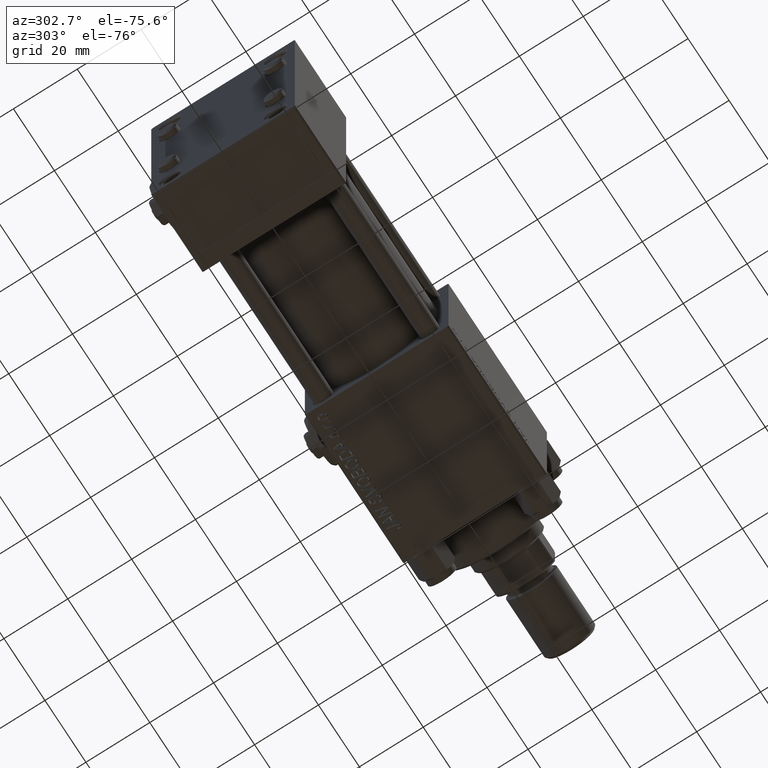
[diagram: clean part render]
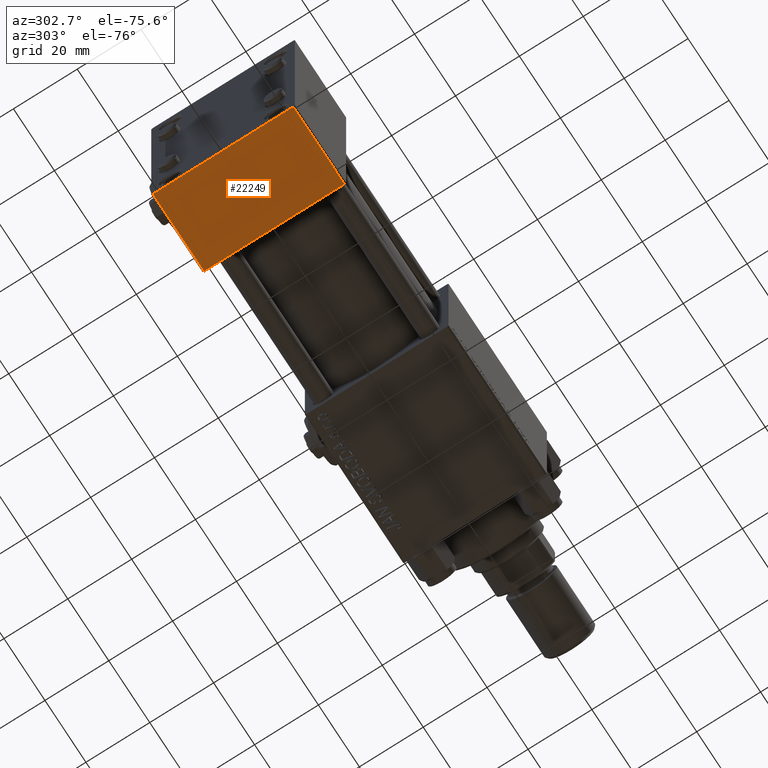
[diagram: same view with one face highlighted and labeled with its STEP entity id]
A machine part, auxiliary view. The second image highlights one B-rep face of the part: STEP entity #22249.
In plain terms, the highlighted planar face has unit normal (0, 0, -1).
Its self-contained STEP definition (entity closure, byte-faithful):
#934 = VERTEX_POINT ( 'NONE', #12677 ) ;
#2582 = ORIENTED_EDGE ( 'NONE', *, *, #6817, .T. ) ;
#3186 = VERTEX_POINT ( 'NONE', #10705 ) ;
#3366 = CARTESIAN_POINT ( 'NONE',  ( 25.00000000000000000, 21.99999999999999645, -34.99999999999999289 ) ) ;
#4208 = DIRECTION ( 'NONE',  ( -1.000000000000000000, 0.000000000000000000, 0.000000000000000000 ) ) ;
#6817 = EDGE_CURVE ( 'NONE', #934, #3186, #35688, .T. ) ;
#7636 = EDGE_CURVE ( 'NONE', #48710, #32414, #36020, .T. ) ;
#9333 = LINE ( 'NONE', #29445, #14189 ) ;
#10705 = CARTESIAN_POINT ( 'NONE',  ( 25.00000000000000000, 21.99999999999999645, -34.99999999999999289 ) ) ;
#11242 = LINE ( 'NONE', #43806, #19478 ) ;
#11599 = EDGE_CURVE ( 'NONE', #3186, #48710, #11242, .T. ) ;
#11899 = ORIENTED_EDGE ( 'NONE', *, *, #7636, .T. ) ;
#12677 = CARTESIAN_POINT ( 'NONE',  ( 0.000000000000000000, 21.99999999999999645, -34.99999999999999289 ) ) ;
#13572 = DIRECTION ( 'NONE',  ( 0.000000000000000000, -1.000000000000000000, -1.541976423090495387E-16 ) ) ;
#13585 = CARTESIAN_POINT ( 'NONE',  ( 25.00000000000000000, 22.50000000000000355, -34.99999999999999289 ) ) ;
#14189 = VECTOR ( 'NONE', #13572, 1000.000000000000000 ) ;
#19197 = DIRECTION ( 'NONE',  ( 0.000000000000000000, -1.000000000000000000, -1.541976423090495387E-16 ) ) ;
#19478 = VECTOR ( 'NONE', #19197, 1000.000000000000000 ) ;
#22249 = ADVANCED_FACE ( 'NONE', ( #46709 ), #42196, .T. ) ;
#24236 = CARTESIAN_POINT ( 'NONE',  ( 25.00000000000000000, -21.99999999999998934, -35.00000000000000000 ) ) ;
#27079 = VECTOR ( 'NONE', #4208, 1000.000000000000000 ) ;
#29445 = CARTESIAN_POINT ( 'NONE',  ( 0.000000000000000000, 22.50000000000000355, -34.99999999999999289 ) ) ;
#29724 = DIRECTION ( 'NONE',  ( 0.000000000000000000, 1.541976423090495387E-16, -1.000000000000000000 ) ) ;
#32175 = EDGE_CURVE ( 'NONE', #934, #32414, #9333, .T. ) ;
#32414 = VERTEX_POINT ( 'NONE', #43096 ) ;
#35191 = DIRECTION ( 'NONE',  ( 1.000000000000000000, 0.000000000000000000, 0.000000000000000000 ) ) ;
#35688 = LINE ( 'NONE', #3366, #40019 ) ;
#36020 = LINE ( 'NONE', #39734, #27079 ) ;
#36835 = ORIENTED_EDGE ( 'NONE', *, *, #11599, .T. ) ;
#37011 = EDGE_LOOP ( 'NONE', ( #44161, #2582, #36835, #11899 ) ) ;
#39309 = AXIS2_PLACEMENT_3D ( 'NONE', #13585, #29724, #41932 ) ;
#39734 = CARTESIAN_POINT ( 'NONE',  ( 0.000000000000000000, -22.00000000000000355, -35.00000000000000000 ) ) ;
#40019 = VECTOR ( 'NONE', #35191, 1000.000000000000000 ) ;
#41932 = DIRECTION ( 'NONE',  ( 0.000000000000000000, 1.000000000000000000, 1.541976423090495387E-16 ) ) ;
#42196 = PLANE ( 'NONE',  #39309 ) ;
#43096 = CARTESIAN_POINT ( 'NONE',  ( 0.000000000000000000, -21.99999999999998934, -35.00000000000000000 ) ) ;
#43806 = CARTESIAN_POINT ( 'NONE',  ( 25.00000000000000000, 22.50000000000000355, -34.99999999999999289 ) ) ;
#44161 = ORIENTED_EDGE ( 'NONE', *, *, #32175, .F. ) ;
#46709 = FACE_OUTER_BOUND ( 'NONE', #37011, .T. ) ;
#48710 = VERTEX_POINT ( 'NONE', #24236 ) ;